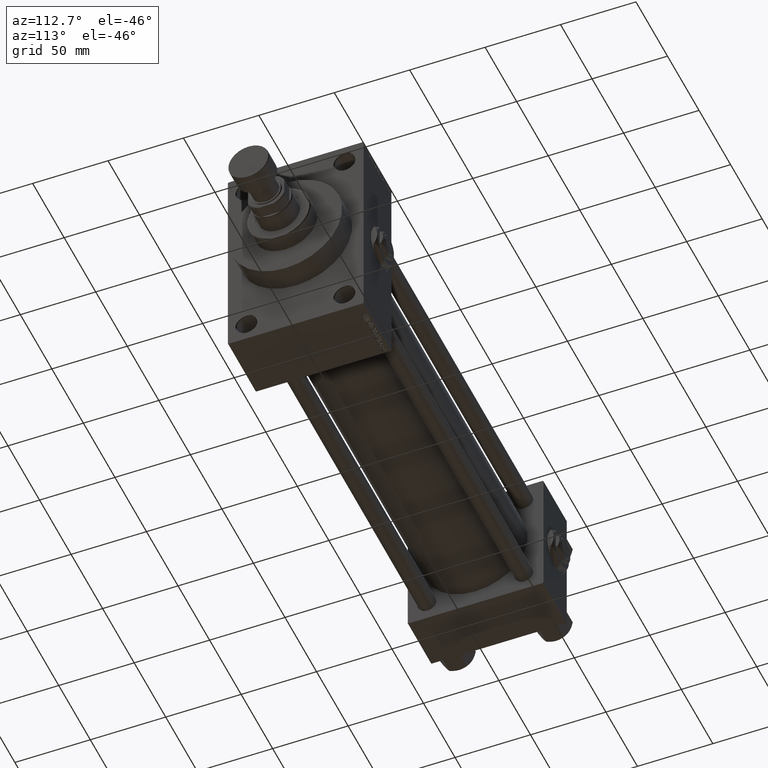
[diagram: clean part render]
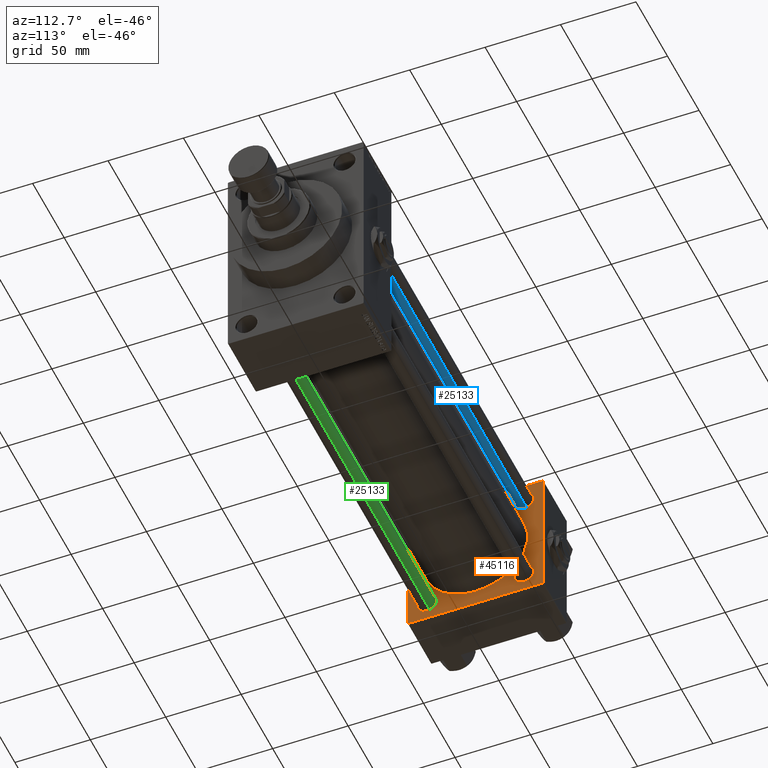
[diagram: same view with three faces highlighted in distinct colors, each labeled with its STEP entity id]
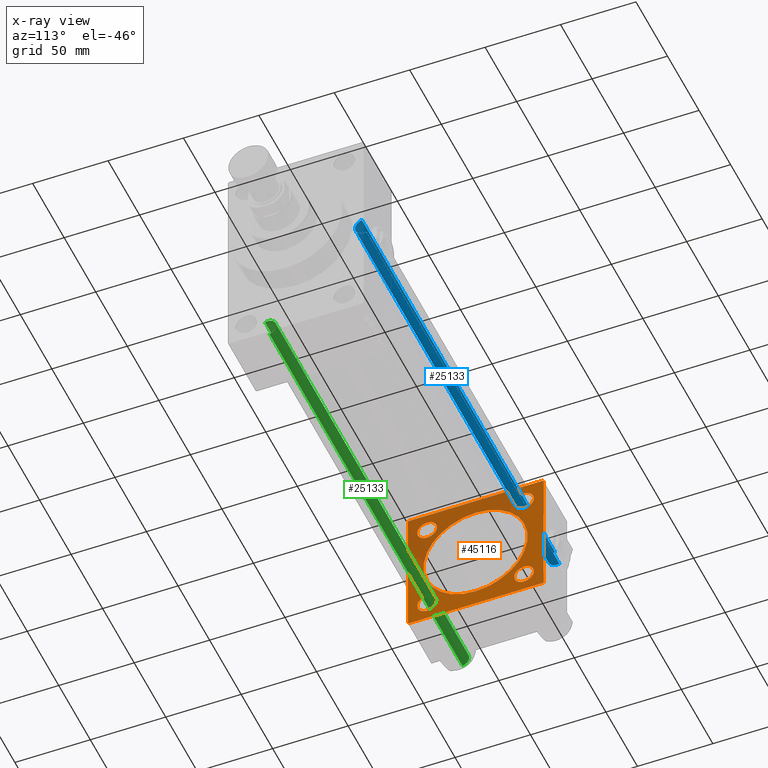
[diagram: x-ray of the same camera — body ghosted, the three highlighted faces saturated]
A machine part, auxiliary view with three faces highlighted in distinct colors.
The next image is the same camera in x-ray (body ghosted, the three faces saturated) — at least one of them is partly hidden behind the body in this view.
Their STEP definitions:

[orange] entity #45116 — the highlighted planar face has unit normal (-1, 0, 0).
#149 = EDGE_LOOP ( 'NONE', ( #13026, #31392, #34462, #42192, #28619, #12232, #6750, #46231 ) ) ;
#554 = CARTESIAN_POINT ( 'NONE',  ( 37.00000000000000000, -44.49999999999998579, -45.00000000000000000 ) ) ;
#575 = VECTOR ( 'NONE', #25409, 1000.000000000000000 ) ;
#681 = EDGE_CURVE ( 'NONE', #20375, #27267, #19678, .T. ) ;
#1057 = CARTESIAN_POINT ( 'NONE',  ( 37.00000000000000000, 32.14999999999999147, -32.15000000000000568 ) ) ;
#1167 = DIRECTION ( 'NONE',  ( 0.000000000000000000, 0.000000000000000000, 1.000000000000000000 ) ) ;
#1904 = AXIS2_PLACEMENT_3D ( 'NONE', #10383, #14897, #2590 ) ;
#2590 = DIRECTION ( 'NONE',  ( 0.000000000000000000, 0.000000000000000000, 1.000000000000000000 ) ) ;
#2948 = EDGE_CURVE ( 'NONE', #25288, #27553, #6959, .T. ) ;
#3259 = DIRECTION ( 'NONE',  ( -1.000000000000000000, 0.000000000000000000, -0.000000000000000000 ) ) ;
#3296 = FACE_BOUND ( 'NONE', #14454, .T. ) ;
#3538 = CARTESIAN_POINT ( 'NONE',  ( 37.00000000000000000, 32.14999999999999147, -25.65000000000005542 ) ) ;
#3767 = DIRECTION ( 'NONE',  ( 0.000000000000000000, -0.7071067811865474617, 0.7071067811865474617 ) ) ;
#4304 = CIRCLE ( 'NONE', #1904, 6.500000000000061284 ) ;
#4325 = AXIS2_PLACEMENT_3D ( 'NONE', #31380, #34902, #16011 ) ;
#4720 = VERTEX_POINT ( 'NONE', #29956 ) ;
#4914 = EDGE_LOOP ( 'NONE', ( #23261, #30911 ) ) ;
#5150 = DIRECTION ( 'NONE',  ( -1.000000000000000000, 0.000000000000000000, -0.000000000000000000 ) ) ;
#5494 = EDGE_CURVE ( 'NONE', #45176, #5733, #31929, .T. ) ;
#5550 = VERTEX_POINT ( 'NONE', #20313 ) ;
#5716 = EDGE_CURVE ( 'NONE', #12138, #4720, #10204, .T. ) ;
#5733 = VERTEX_POINT ( 'NONE', #43849 ) ;
#6246 = EDGE_CURVE ( 'NONE', #34904, #27340, #10032, .T. ) ;
#6348 = VERTEX_POINT ( 'NONE', #42248 ) ;
#6633 = EDGE_LOOP ( 'NONE', ( #13328, #9170 ) ) ;
#6750 = ORIENTED_EDGE ( 'NONE', *, *, #8260, .T. ) ;
#6959 = LINE ( 'NONE', #14762, #8508 ) ;
#7061 = DIRECTION ( 'NONE',  ( -0.000000000000000000, 0.000000000000000000, 1.000000000000000000 ) ) ;
#7911 = VECTOR ( 'NONE', #48762, 1000.000000000000000 ) ;
#8036 = PLANE ( 'NONE',  #39890 ) ;
#8255 = LINE ( 'NONE', #19610, #47712 ) ;
#8260 = EDGE_CURVE ( 'NONE', #29625, #20375, #40847, .T. ) ;
#8508 = VECTOR ( 'NONE', #44988, 1000.000000000000000 ) ;
#9018 = EDGE_CURVE ( 'NONE', #38362, #6348, #36742, .T. ) ;
#9166 = CARTESIAN_POINT ( 'NONE',  ( 37.00000000000000000, 32.14999999999999147, 32.15000000000000568 ) ) ;
#9170 = ORIENTED_EDGE ( 'NONE', *, *, #48525, .F. ) ;
#9281 = CARTESIAN_POINT ( 'NONE',  ( 37.00000000000000000, -32.14999999999997726, 25.64999999999994884 ) ) ;
#10032 = LINE ( 'NONE', #25895, #575 ) ;
#10204 = CIRCLE ( 'NONE', #39143, 6.499999999999950262 ) ;
#10383 = CARTESIAN_POINT ( 'NONE',  ( 37.00000000000000000, -32.14999999999997726, -32.15000000000001279 ) ) ;
#10754 = CIRCLE ( 'NONE', #4325, 34.50000000000000000 ) ;
#11186 = VECTOR ( 'NONE', #38092, 1000.000000000000114 ) ;
#11761 = DIRECTION ( 'NONE',  ( -1.000000000000000000, 0.000000000000000000, -0.000000000000000000 ) ) ;
#11961 = DIRECTION ( 'NONE',  ( -1.000000000000000000, 0.000000000000000000, -0.000000000000000000 ) ) ;
#12100 = CARTESIAN_POINT ( 'NONE',  ( 37.00000000000000711, -2.602085213965210642E-15, 0.000000000000000000 ) ) ;
#12138 = VERTEX_POINT ( 'NONE', #3538 ) ;
#12232 = ORIENTED_EDGE ( 'NONE', *, *, #33993, .T. ) ;
#12409 = EDGE_CURVE ( 'NONE', #4720, #12138, #48420, .T. ) ;
#12614 = AXIS2_PLACEMENT_3D ( 'NONE', #46253, #11761, #27137 ) ;
#13026 = ORIENTED_EDGE ( 'NONE', *, *, #30166, .F. ) ;
#13219 = VECTOR ( 'NONE', #15901, 1000.000000000000114 ) ;
#13328 = ORIENTED_EDGE ( 'NONE', *, *, #15541, .F. ) ;
#13599 = CIRCLE ( 'NONE', #42543, 6.499999999999950262 ) ;
#14454 = EDGE_LOOP ( 'NONE', ( #38886, #49775 ) ) ;
#14762 = CARTESIAN_POINT ( 'NONE',  ( 37.00000000000000000, 44.99999999999998579, 45.00000000000001421 ) ) ;
#14849 = CARTESIAN_POINT ( 'NONE',  ( 37.00000000000000000, 32.14999999999999147, 25.65000000000005542 ) ) ;
#14897 = DIRECTION ( 'NONE',  ( -1.000000000000000000, 0.000000000000000000, -0.000000000000000000 ) ) ;
#15128 = FACE_BOUND ( 'NONE', #6633, .T. ) ;
#15147 = VERTEX_POINT ( 'NONE', #25504 ) ;
#15541 = EDGE_CURVE ( 'NONE', #15147, #32188, #10754, .T. ) ;
#15676 = VECTOR ( 'NONE', #36190, 1000.000000000000114 ) ;
#15901 = DIRECTION ( 'NONE',  ( 0.000000000000000000, 0.7071067811865474617, -0.7071067811865474617 ) ) ;
#16011 = DIRECTION ( 'NONE',  ( 0.000000000000000000, 0.000000000000000000, 1.000000000000000000 ) ) ;
#17538 = ORIENTED_EDGE ( 'NONE', *, *, #5494, .T. ) ;
#18073 = CARTESIAN_POINT ( 'NONE',  ( 37.00000000000000000, 44.99999999999998579, -44.99999999999998579 ) ) ;
#18619 = DIRECTION ( 'NONE',  ( 0.000000000000000000, 0.000000000000000000, 1.000000000000000000 ) ) ;
#18717 = LINE ( 'NONE', #34069, #11186 ) ;
#19202 = EDGE_CURVE ( 'NONE', #34162, #27340, #39972, .T. ) ;
#19530 = CARTESIAN_POINT ( 'NONE',  ( 37.00000000000000000, 44.99999999999998579, -44.49999999999995737 ) ) ;
#19610 = CARTESIAN_POINT ( 'NONE',  ( 37.00000000000000000, 44.49999999999998579, 45.00000000000001421 ) ) ;
#19633 = CARTESIAN_POINT ( 'NONE',  ( 37.00000000000000000, 0.000000000000000000, 0.000000000000000000 ) ) ;
#19678 = LINE ( 'NONE', #554, #13219 ) ;
#20313 = CARTESIAN_POINT ( 'NONE',  ( 37.00000000000000000, -32.14999999999997726, -38.65000000000007674 ) ) ;
#20375 = VERTEX_POINT ( 'NONE', #47453 ) ;
#20430 = EDGE_CURVE ( 'NONE', #36758, #5550, #49519, .T. ) ;
#20837 = CARTESIAN_POINT ( 'NONE',  ( 37.00000000000000000, 44.99999999999998579, -44.49999999999998579 ) ) ;
#21283 = CARTESIAN_POINT ( 'NONE',  ( 37.00000000000000000, -44.49999999999995737, 45.00000000000000000 ) ) ;
#22273 = DIRECTION ( 'NONE',  ( 0.000000000000000000, 0.000000000000000000, 1.000000000000000000 ) ) ;
#22310 = DIRECTION ( 'NONE',  ( -1.000000000000000000, 0.000000000000000000, -0.000000000000000000 ) ) ;
#23043 = VECTOR ( 'NONE', #29750, 1000.000000000000000 ) ;
#23175 = FACE_BOUND ( 'NONE', #4914, .T. ) ;
#23261 = ORIENTED_EDGE ( 'NONE', *, *, #12409, .T. ) ;
#24300 = CARTESIAN_POINT ( 'NONE',  ( 37.00000000000000000, -32.14999999999997726, -32.15000000000001279 ) ) ;
#24433 = CARTESIAN_POINT ( 'NONE',  ( 37.00000000000000000, -45.00000000000000711, 44.49999999999997158 ) ) ;
#25158 = DIRECTION ( 'NONE',  ( 0.000000000000000000, 0.000000000000000000, 1.000000000000000000 ) ) ;
#25288 = VERTEX_POINT ( 'NONE', #41197 ) ;
#25409 = DIRECTION ( 'NONE',  ( 0.000000000000000000, 0.000000000000000000, -1.000000000000000000 ) ) ;
#25430 = CARTESIAN_POINT ( 'NONE',  ( 37.00000000000000000, -32.14999999999997726, 32.15000000000001279 ) ) ;
#25504 = CARTESIAN_POINT ( 'NONE',  ( 37.00000000000000711, -2.602085213965210642E-15, 34.50000000000000000 ) ) ;
#25895 = CARTESIAN_POINT ( 'NONE',  ( 37.00000000000000000, 44.99999999999998579, 45.00000000000001421 ) ) ;
#26119 = AXIS2_PLACEMENT_3D ( 'NONE', #24300, #5150, #35887 ) ;
#26705 = FACE_BOUND ( 'NONE', #27281, .T. ) ;
#27137 = DIRECTION ( 'NONE',  ( 0.000000000000000000, 0.000000000000000000, 1.000000000000000000 ) ) ;
#27267 = VERTEX_POINT ( 'NONE', #39723 ) ;
#27281 = EDGE_LOOP ( 'NONE', ( #32722, #37725 ) ) ;
#27340 = VERTEX_POINT ( 'NONE', #19530 ) ;
#27553 = VERTEX_POINT ( 'NONE', #21283 ) ;
#27857 = DIRECTION ( 'NONE',  ( -1.000000000000000000, 0.000000000000000000, -0.000000000000000000 ) ) ;
#28499 = CARTESIAN_POINT ( 'NONE',  ( 37.00000000000000000, 44.99999999999998579, 44.50000000000001421 ) ) ;
#28619 = ORIENTED_EDGE ( 'NONE', *, *, #2948, .T. ) ;
#28679 = AXIS2_PLACEMENT_3D ( 'NONE', #9166, #11961, #43179 ) ;
#29625 = VERTEX_POINT ( 'NONE', #24433 ) ;
#29750 = DIRECTION ( 'NONE',  ( 0.000000000000000000, 7.709882115452476934E-17, -1.000000000000000000 ) ) ;
#29956 = CARTESIAN_POINT ( 'NONE',  ( 37.00000000000000000, 32.14999999999999147, -38.64999999999995595 ) ) ;
#30166 = EDGE_CURVE ( 'NONE', #34162, #27267, #40996, .T. ) ;
#30911 = ORIENTED_EDGE ( 'NONE', *, *, #5716, .T. ) ;
#30971 = DIRECTION ( 'NONE',  ( -1.000000000000000000, 0.000000000000000000, -0.000000000000000000 ) ) ;
#31077 = AXIS2_PLACEMENT_3D ( 'NONE', #25430, #3259, #18619 ) ;
#31306 = EDGE_CURVE ( 'NONE', #6348, #38362, #13599, .T. ) ;
#31380 = CARTESIAN_POINT ( 'NONE',  ( 37.00000000000000711, -2.602085213965210642E-15, 0.000000000000000000 ) ) ;
#31392 = ORIENTED_EDGE ( 'NONE', *, *, #19202, .T. ) ;
#31929 = CIRCLE ( 'NONE', #12614, 6.500000000000061284 ) ;
#32188 = VERTEX_POINT ( 'NONE', #35478 ) ;
#32637 = CARTESIAN_POINT ( 'NONE',  ( 37.00000000000000000, 32.14999999999999147, 32.15000000000000568 ) ) ;
#32722 = ORIENTED_EDGE ( 'NONE', *, *, #36099, .T. ) ;
#33993 = EDGE_CURVE ( 'NONE', #27553, #29625, #18717, .T. ) ;
#34069 = CARTESIAN_POINT ( 'NONE',  ( 37.00000000000000000, -45.00000000000000711, 44.49999999999997158 ) ) ;
#34162 = VERTEX_POINT ( 'NONE', #44345 ) ;
#34462 = ORIENTED_EDGE ( 'NONE', *, *, #6246, .F. ) ;
#34902 = DIRECTION ( 'NONE',  ( 1.000000000000000000, -0.000000000000000000, 0.000000000000000000 ) ) ;
#34904 = VERTEX_POINT ( 'NONE', #28499 ) ;
#34993 = FACE_OUTER_BOUND ( 'NONE', #149, .T. ) ;
#35478 = CARTESIAN_POINT ( 'NONE',  ( 37.00000000000000711, 1.622946243093158675E-15, -34.50000000000000000 ) ) ;
#35887 = DIRECTION ( 'NONE',  ( 0.000000000000000000, 0.000000000000000000, 1.000000000000000000 ) ) ;
#35978 = CIRCLE ( 'NONE', #44024, 34.50000000000000000 ) ;
#36099 = EDGE_CURVE ( 'NONE', #5550, #36758, #4304, .T. ) ;
#36190 = DIRECTION ( 'NONE',  ( -0.000000000000000000, 0.7071067811865474617, 0.7071067811865474617 ) ) ;
#36479 = EDGE_CURVE ( 'NONE', #34904, #25288, #8255, .T. ) ;
#36742 = CIRCLE ( 'NONE', #28679, 6.499999999999950262 ) ;
#36758 = VERTEX_POINT ( 'NONE', #39498 ) ;
#36936 = EDGE_LOOP ( 'NONE', ( #17538, #44758 ) ) ;
#37725 = ORIENTED_EDGE ( 'NONE', *, *, #20430, .T. ) ;
#38092 = DIRECTION ( 'NONE',  ( -0.000000000000000000, -0.7071067811865425767, -0.7071067811865524577 ) ) ;
#38362 = VERTEX_POINT ( 'NONE', #14849 ) ;
#38886 = ORIENTED_EDGE ( 'NONE', *, *, #9018, .T. ) ;
#39143 = AXIS2_PLACEMENT_3D ( 'NONE', #1057, #22310, #46620 ) ;
#39498 = CARTESIAN_POINT ( 'NONE',  ( 37.00000000000000000, -32.14999999999997726, -25.64999999999994884 ) ) ;
#39723 = CARTESIAN_POINT ( 'NONE',  ( 37.00000000000000000, -44.49999999999995737, -45.00000000000000000 ) ) ;
#39890 = AXIS2_PLACEMENT_3D ( 'NONE', #19633, #30971, #7061 ) ;
#39972 = LINE ( 'NONE', #20837, #15676 ) ;
#40847 = LINE ( 'NONE', #48361, #23043 ) ;
#40996 = LINE ( 'NONE', #18073, #7911 ) ;
#41163 = DIRECTION ( 'NONE',  ( 1.000000000000000000, -0.000000000000000000, 0.000000000000000000 ) ) ;
#41197 = CARTESIAN_POINT ( 'NONE',  ( 37.00000000000000000, 44.49999999999998579, 45.00000000000001421 ) ) ;
#42192 = ORIENTED_EDGE ( 'NONE', *, *, #36479, .T. ) ;
#42248 = CARTESIAN_POINT ( 'NONE',  ( 37.00000000000000000, 32.14999999999999147, 38.64999999999995595 ) ) ;
#42543 = AXIS2_PLACEMENT_3D ( 'NONE', #32637, #27857, #1167 ) ;
#43154 = CIRCLE ( 'NONE', #31077, 6.500000000000061284 ) ;
#43179 = DIRECTION ( 'NONE',  ( 0.000000000000000000, 0.000000000000000000, 1.000000000000000000 ) ) ;
#43849 = CARTESIAN_POINT ( 'NONE',  ( 37.00000000000000000, -32.14999999999997726, 38.65000000000007674 ) ) ;
#44024 = AXIS2_PLACEMENT_3D ( 'NONE', #12100, #41163, #22273 ) ;
#44291 = DIRECTION ( 'NONE',  ( -1.000000000000000000, 0.000000000000000000, -0.000000000000000000 ) ) ;
#44345 = CARTESIAN_POINT ( 'NONE',  ( 37.00000000000000000, 44.49999999999998579, -44.99999999999998579 ) ) ;
#44758 = ORIENTED_EDGE ( 'NONE', *, *, #46896, .T. ) ;
#44988 = DIRECTION ( 'NONE',  ( 0.000000000000000000, -1.000000000000000000, -1.541976423090495387E-16 ) ) ;
#45116 = ADVANCED_FACE ( 'NONE', ( #26705, #23175, #45837, #3296, #15128, #34993 ), #8036, .F. ) ;
#45176 = VERTEX_POINT ( 'NONE', #9281 ) ;
#45237 = AXIS2_PLACEMENT_3D ( 'NONE', #48058, #44291, #25158 ) ;
#45837 = FACE_BOUND ( 'NONE', #36936, .T. ) ;
#46231 = ORIENTED_EDGE ( 'NONE', *, *, #681, .T. ) ;
#46253 = CARTESIAN_POINT ( 'NONE',  ( 37.00000000000000000, -32.14999999999997726, 32.15000000000001279 ) ) ;
#46620 = DIRECTION ( 'NONE',  ( 0.000000000000000000, 0.000000000000000000, 1.000000000000000000 ) ) ;
#46896 = EDGE_CURVE ( 'NONE', #5733, #45176, #43154, .T. ) ;
#47453 = CARTESIAN_POINT ( 'NONE',  ( 37.00000000000000000, -45.00000000000000000, -44.49999999999995737 ) ) ;
#47712 = VECTOR ( 'NONE', #3767, 1000.000000000000114 ) ;
#48058 = CARTESIAN_POINT ( 'NONE',  ( 37.00000000000000000, 32.14999999999999147, -32.15000000000000568 ) ) ;
#48361 = CARTESIAN_POINT ( 'NONE',  ( 37.00000000000000000, -45.00000000000000711, 45.00000000000000000 ) ) ;
#48420 = CIRCLE ( 'NONE', #45237, 6.499999999999950262 ) ;
#48525 = EDGE_CURVE ( 'NONE', #32188, #15147, #35978, .T. ) ;
#48762 = DIRECTION ( 'NONE',  ( 0.000000000000000000, -1.000000000000000000, -1.541976423090495633E-16 ) ) ;
#49519 = CIRCLE ( 'NONE', #26119, 6.500000000000061284 ) ;
#49775 = ORIENTED_EDGE ( 'NONE', *, *, #31306, .T. ) ;

[blue] entity #25133 — the highlighted cylindrical surface (edge-blend (fillet) strip) has radius 6 mm, axis along (-1, -0, 0).
#217 = CARTESIAN_POINT ( 'NONE',  ( -6.000000000000000888, 0.000000000000000000, 307.0000000000000000 ) ) ;
#1519 = ORIENTED_EDGE ( 'NONE', *, *, #49024, .F. ) ;
#1941 = VERTEX_POINT ( 'NONE', #35900 ) ;
#2443 = CYLINDRICAL_SURFACE ( 'NONE', #27869, 6.000000000000000888 ) ;
#2548 = CARTESIAN_POINT ( 'NONE',  ( 6.000000000000000888, 7.347880794884120722E-16, 0.5000000000000004441 ) ) ;
#3147 = CARTESIAN_POINT ( 'NONE',  ( -6.000000000000000888, 0.000000000000000000, 0.5000000000000004441 ) ) ;
#3804 = VECTOR ( 'NONE', #24132, 1000.000000000000000 ) ;
#4102 = VERTEX_POINT ( 'NONE', #3147 ) ;
#6026 = ORIENTED_EDGE ( 'NONE', *, *, #49073, .T. ) ;
#7361 = ORIENTED_EDGE ( 'NONE', *, *, #11626, .T. ) ;
#9472 = EDGE_CURVE ( 'NONE', #1941, #4102, #30924, .T. ) ;
#9475 = FACE_OUTER_BOUND ( 'NONE', #26464, .T. ) ;
#11414 = AXIS2_PLACEMENT_3D ( 'NONE', #32338, #13447, #28813 ) ;
#11626 = EDGE_CURVE ( 'NONE', #4102, #16894, #26701, .T. ) ;
#13447 = DIRECTION ( 'NONE',  ( -0.000000000000000000, -0.000000000000000000, 1.000000000000000000 ) ) ;
#16894 = VERTEX_POINT ( 'NONE', #2548 ) ;
#16958 = ORIENTED_EDGE ( 'NONE', *, *, #9472, .T. ) ;
#19030 = CARTESIAN_POINT ( 'NONE',  ( 6.000000000000000888, 7.347880794884120722E-16, 306.5000000000000000 ) ) ;
#21326 = CARTESIAN_POINT ( 'NONE',  ( 0.000000000000000000, 0.000000000000000000, 307.0000000000000000 ) ) ;
#21613 = DIRECTION ( 'NONE',  ( 1.000000000000000000, 0.000000000000000000, 0.000000000000000000 ) ) ;
#21823 = DIRECTION ( 'NONE',  ( -1.000000000000000000, 0.000000000000000000, 0.000000000000000000 ) ) ;
#23924 = CIRCLE ( 'NONE', #48820, 6.000000000000000888 ) ;
#24132 = DIRECTION ( 'NONE',  ( -0.000000000000000000, -0.000000000000000000, -1.000000000000000000 ) ) ;
#25016 = VECTOR ( 'NONE', #46274, 1000.000000000000000 ) ;
#25133 = ADVANCED_FACE ( 'NONE', ( #9475 ), #2443, .T. ) ;
#26464 = EDGE_LOOP ( 'NONE', ( #1519, #6026, #16958, #7361 ) ) ;
#26701 = CIRCLE ( 'NONE', #11414, 6.000000000000000888 ) ;
#27869 = AXIS2_PLACEMENT_3D ( 'NONE', #21326, #36419, #21823 ) ;
#27912 = LINE ( 'NONE', #43272, #3804 ) ;
#28813 = DIRECTION ( 'NONE',  ( 1.000000000000000000, 0.000000000000000000, 0.000000000000000000 ) ) ;
#30924 = LINE ( 'NONE', #217, #25016 ) ;
#32338 = CARTESIAN_POINT ( 'NONE',  ( 0.000000000000000000, 0.000000000000000000, 0.5000000000000004441 ) ) ;
#32430 = DIRECTION ( 'NONE',  ( 0.000000000000000000, 0.000000000000000000, -1.000000000000000000 ) ) ;
#32942 = CARTESIAN_POINT ( 'NONE',  ( 0.000000000000000000, 0.000000000000000000, 306.5000000000000000 ) ) ;
#35900 = CARTESIAN_POINT ( 'NONE',  ( -6.000000000000000888, 0.000000000000000000, 306.5000000000000000 ) ) ;
#36419 = DIRECTION ( 'NONE',  ( -0.000000000000000000, -0.000000000000000000, -1.000000000000000000 ) ) ;
#43272 = CARTESIAN_POINT ( 'NONE',  ( 6.000000000000000888, 7.347880794884120722E-16, 307.0000000000000000 ) ) ;
#44534 = VERTEX_POINT ( 'NONE', #19030 ) ;
#46274 = DIRECTION ( 'NONE',  ( -0.000000000000000000, -0.000000000000000000, -1.000000000000000000 ) ) ;
#48820 = AXIS2_PLACEMENT_3D ( 'NONE', #32942, #32430, #21613 ) ;
#49024 = EDGE_CURVE ( 'NONE', #44534, #16894, #27912, .T. ) ;
#49073 = EDGE_CURVE ( 'NONE', #44534, #1941, #23924, .T. ) ;

[green] entity #25133 — the highlighted cylindrical surface (edge-blend (fillet) strip) has radius 6 mm, axis along (-1, 0, 0).
#217 = CARTESIAN_POINT ( 'NONE',  ( -6.000000000000000888, 0.000000000000000000, 307.0000000000000000 ) ) ;
#1519 = ORIENTED_EDGE ( 'NONE', *, *, #49024, .F. ) ;
#1941 = VERTEX_POINT ( 'NONE', #35900 ) ;
#2443 = CYLINDRICAL_SURFACE ( 'NONE', #27869, 6.000000000000000888 ) ;
#2548 = CARTESIAN_POINT ( 'NONE',  ( 6.000000000000000888, 7.347880794884120722E-16, 0.5000000000000004441 ) ) ;
#3147 = CARTESIAN_POINT ( 'NONE',  ( -6.000000000000000888, 0.000000000000000000, 0.5000000000000004441 ) ) ;
#3804 = VECTOR ( 'NONE', #24132, 1000.000000000000000 ) ;
#4102 = VERTEX_POINT ( 'NONE', #3147 ) ;
#6026 = ORIENTED_EDGE ( 'NONE', *, *, #49073, .T. ) ;
#7361 = ORIENTED_EDGE ( 'NONE', *, *, #11626, .T. ) ;
#9472 = EDGE_CURVE ( 'NONE', #1941, #4102, #30924, .T. ) ;
#9475 = FACE_OUTER_BOUND ( 'NONE', #26464, .T. ) ;
#11414 = AXIS2_PLACEMENT_3D ( 'NONE', #32338, #13447, #28813 ) ;
#11626 = EDGE_CURVE ( 'NONE', #4102, #16894, #26701, .T. ) ;
#13447 = DIRECTION ( 'NONE',  ( -0.000000000000000000, -0.000000000000000000, 1.000000000000000000 ) ) ;
#16894 = VERTEX_POINT ( 'NONE', #2548 ) ;
#16958 = ORIENTED_EDGE ( 'NONE', *, *, #9472, .T. ) ;
#19030 = CARTESIAN_POINT ( 'NONE',  ( 6.000000000000000888, 7.347880794884120722E-16, 306.5000000000000000 ) ) ;
#21326 = CARTESIAN_POINT ( 'NONE',  ( 0.000000000000000000, 0.000000000000000000, 307.0000000000000000 ) ) ;
#21613 = DIRECTION ( 'NONE',  ( 1.000000000000000000, 0.000000000000000000, 0.000000000000000000 ) ) ;
#21823 = DIRECTION ( 'NONE',  ( -1.000000000000000000, 0.000000000000000000, 0.000000000000000000 ) ) ;
#23924 = CIRCLE ( 'NONE', #48820, 6.000000000000000888 ) ;
#24132 = DIRECTION ( 'NONE',  ( -0.000000000000000000, -0.000000000000000000, -1.000000000000000000 ) ) ;
#25016 = VECTOR ( 'NONE', #46274, 1000.000000000000000 ) ;
#25133 = ADVANCED_FACE ( 'NONE', ( #9475 ), #2443, .T. ) ;
#26464 = EDGE_LOOP ( 'NONE', ( #1519, #6026, #16958, #7361 ) ) ;
#26701 = CIRCLE ( 'NONE', #11414, 6.000000000000000888 ) ;
#27869 = AXIS2_PLACEMENT_3D ( 'NONE', #21326, #36419, #21823 ) ;
#27912 = LINE ( 'NONE', #43272, #3804 ) ;
#28813 = DIRECTION ( 'NONE',  ( 1.000000000000000000, 0.000000000000000000, 0.000000000000000000 ) ) ;
#30924 = LINE ( 'NONE', #217, #25016 ) ;
#32338 = CARTESIAN_POINT ( 'NONE',  ( 0.000000000000000000, 0.000000000000000000, 0.5000000000000004441 ) ) ;
#32430 = DIRECTION ( 'NONE',  ( 0.000000000000000000, 0.000000000000000000, -1.000000000000000000 ) ) ;
#32942 = CARTESIAN_POINT ( 'NONE',  ( 0.000000000000000000, 0.000000000000000000, 306.5000000000000000 ) ) ;
#35900 = CARTESIAN_POINT ( 'NONE',  ( -6.000000000000000888, 0.000000000000000000, 306.5000000000000000 ) ) ;
#36419 = DIRECTION ( 'NONE',  ( -0.000000000000000000, -0.000000000000000000, -1.000000000000000000 ) ) ;
#43272 = CARTESIAN_POINT ( 'NONE',  ( 6.000000000000000888, 7.347880794884120722E-16, 307.0000000000000000 ) ) ;
#44534 = VERTEX_POINT ( 'NONE', #19030 ) ;
#46274 = DIRECTION ( 'NONE',  ( -0.000000000000000000, -0.000000000000000000, -1.000000000000000000 ) ) ;
#48820 = AXIS2_PLACEMENT_3D ( 'NONE', #32942, #32430, #21613 ) ;
#49024 = EDGE_CURVE ( 'NONE', #44534, #16894, #27912, .T. ) ;
#49073 = EDGE_CURVE ( 'NONE', #44534, #1941, #23924, .T. ) ;